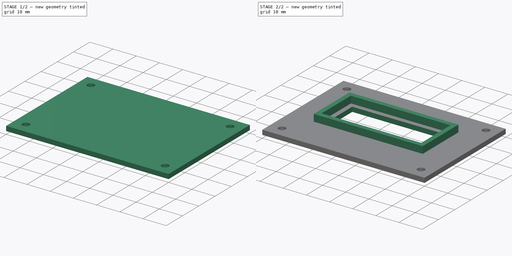
[diagram: build sequence overview — one tinted view per stage of 2, left to right]
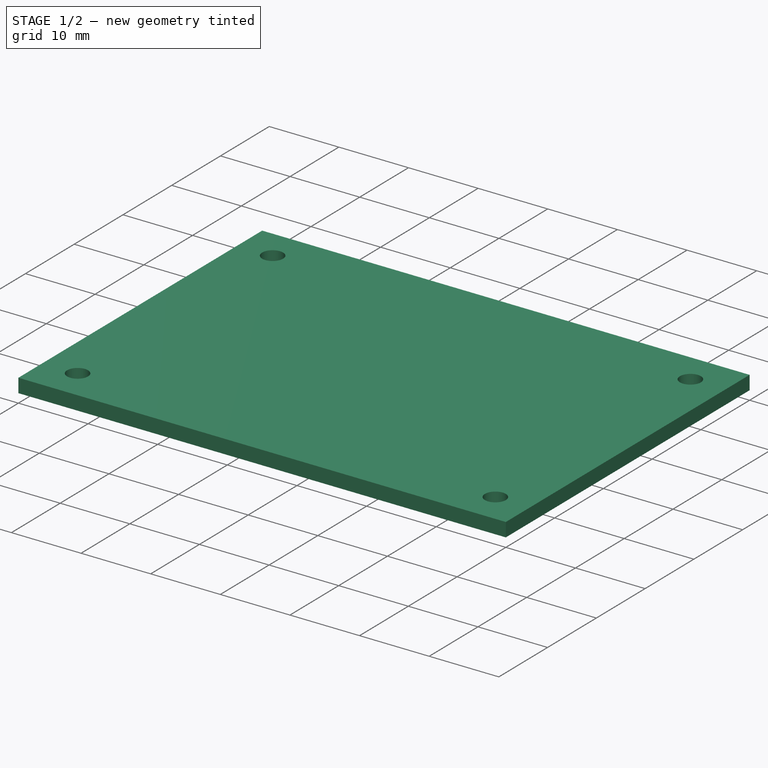
[diagram: stage 1 of 2 — iso view after this stage's code; geometry added in this stage tinted green]
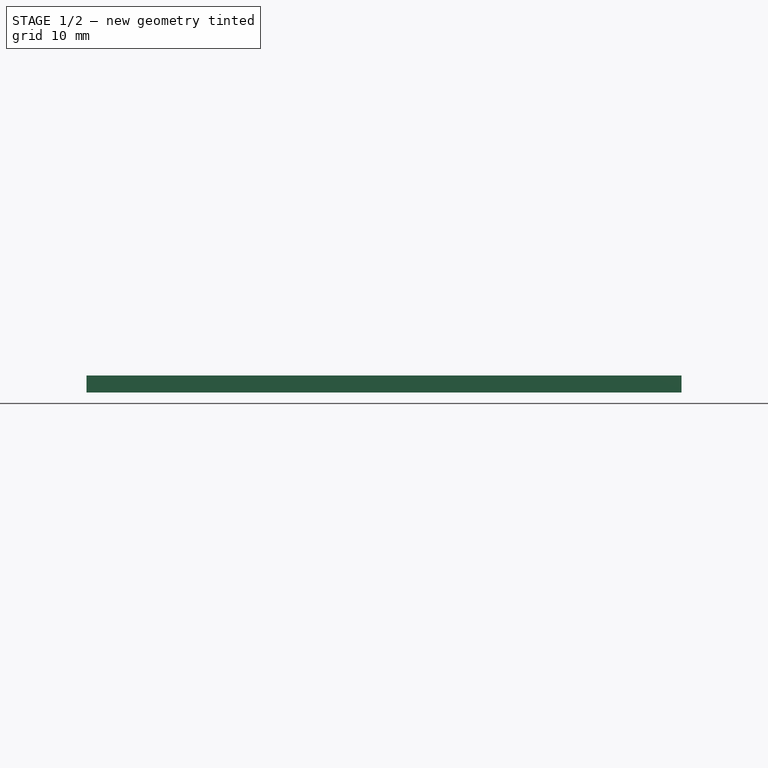
[diagram: stage 1 of 2 — front view after this stage's code; geometry added in this stage tinted green]
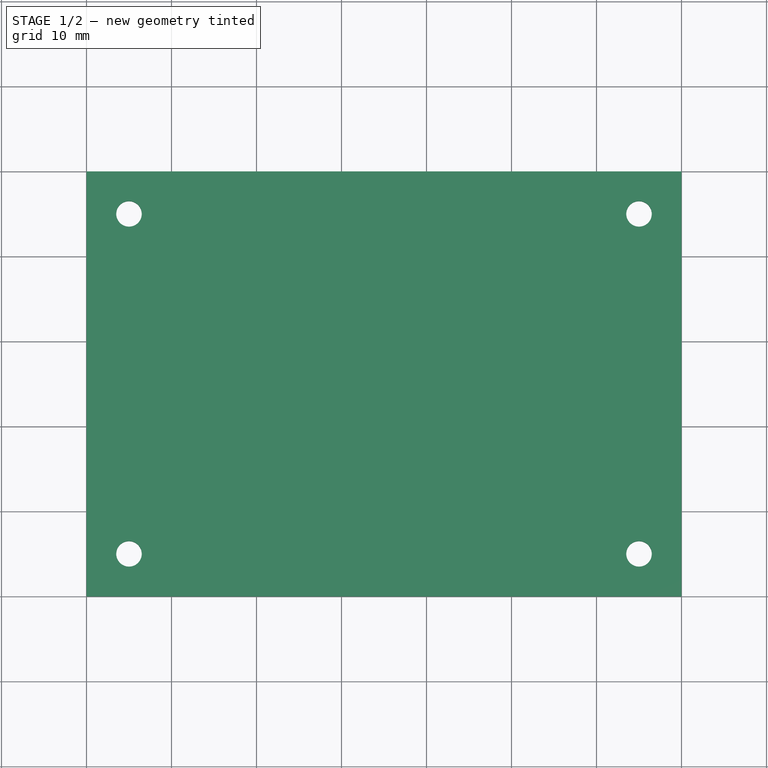
[diagram: stage 1 of 2 — top view after this stage's code; geometry added in this stage tinted green]
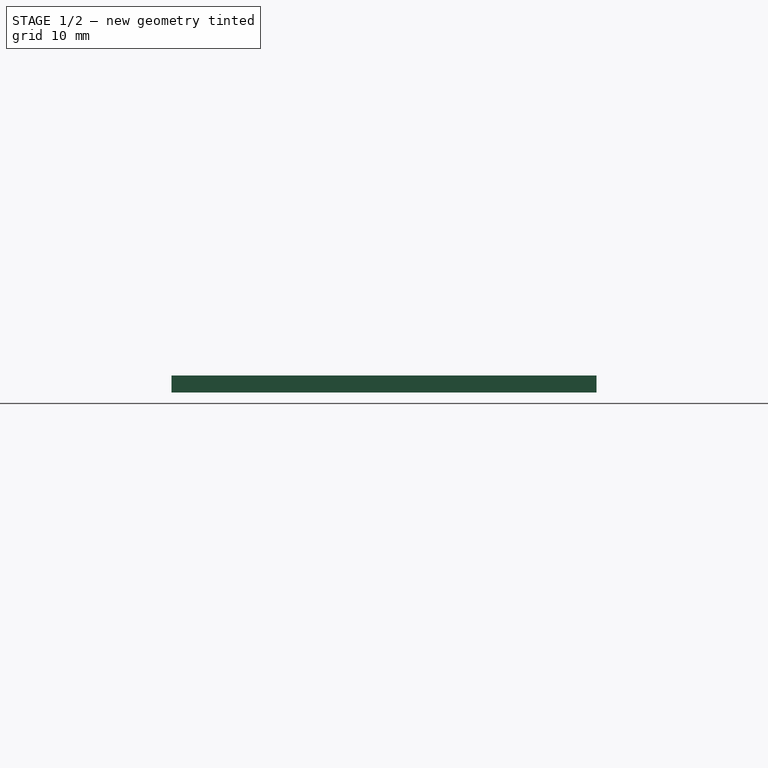
[diagram: stage 1 of 2 — right view after this stage's code; geometry added in this stage tinted green]
FCSTD DOCUMENT  (FreeCAD 0.16R6706 (Git))
Label: iROB-EA_ModuloPrincipal_Trasera
License: All rights reserved
LicenseURL: http://en.wikipedia.org/wiki/All_rights_reserved
objects: Sketcher::SketchObject×4, PartDesign::Pad×2, PartDesign::Pocket×2
note: 12 computed .brp shape members not serialized (recipe doc carries the construction recipe); baked Part::Feature solids carry a one-line shape summary decoded from their .brp

FEATURE [Sketcher::SketchObject] Sketch  label="Base"
  sketch-geometry (4):
    g0: LineSegment StartX=0 StartY=50 StartZ=0 EndX=70 EndY=50 EndZ=0
    g1: LineSegment StartX=70 StartY=50 StartZ=0 EndX=70 EndY=0 EndZ=0
    g2: LineSegment StartX=70 StartY=0 StartZ=0 EndX=0 EndY=0 EndZ=0
    g3: LineSegment StartX=0 StartY=0 StartZ=0 EndX=0 EndY=50 EndZ=0
  constraints (11):
    c: Coincident(g0,g1)
    c: Coincident(g1,g2)
    c: Coincident(g2,g3)
    c: Coincident(g3,g0)
    c: Horizontal(g0)
    c: Horizontal(g2)
    c: Vertical(g1)
    c: Vertical(g3)
    c: DistanceX(g0,g0) = 70
    c: DistanceY(g3,g3) = 50
    c: Coincident(g2,g-1)
FEATURE [PartDesign::Pad] Pad
  Length = 2
  Length2 = 100
  Sketch = -> Sketch
  Type = 0
FEATURE [Sketcher::SketchObject] Sketch001  label="Tornillos_Base"
  Placement = pos=(0,0,2) rot=(0,0,1;0rad)
  Support = -> Pad [Face6]
  sketch-geometry (4):
    g0: Circle CenterX=5 CenterY=45 CenterZ=0 NormalX=0 NormalY=0 NormalZ=1 Radius=1.5
    g1: Circle CenterX=65 CenterY=45 CenterZ=0 NormalX=0 NormalY=0 NormalZ=1 Radius=1.5
    g2: Circle CenterX=5 CenterY=5 CenterZ=0 NormalX=0 NormalY=0 NormalZ=1 Radius=1.5
    g3: Circle CenterX=65 CenterY=5 CenterZ=0 NormalX=0 NormalY=0 NormalZ=1 Radius=1.5
  constraints (12):
    c: Radius(g0) = 1.5
    c: Radius(g1) = 1.5
    c: DistanceY(g0,g1) = 0
    c: DistanceX(g0,g1) = 60
    c: Radius(g2) = 1.5
    c: Radius(g3) = 1.5
    c: DistanceY(g2,g3) = 0
    c: DistanceX(g3,g1) = 0
    c: DistanceX(g0,g2) = 0
    c: DistanceY(g2,g0) = 40
    c: DistanceX(g2,g-1) = -5
    c: DistanceY(g-1,g2) = 5
FEATURE [PartDesign::Pocket] Pocket
  Length = 2
  Sketch = -> Sketch001
  Type = 0
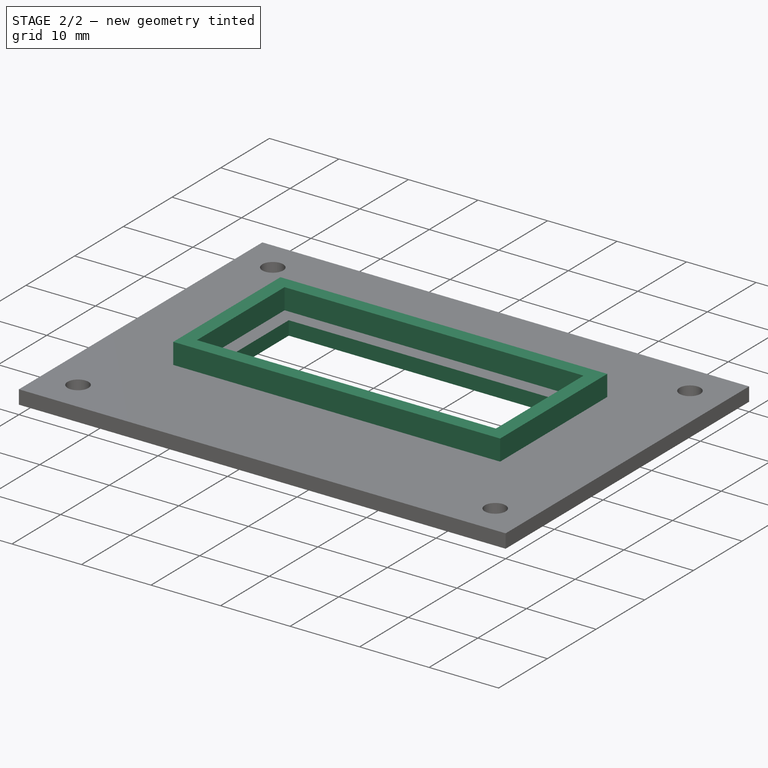
[diagram: stage 2 of 2 — iso view after this stage's code; geometry added in this stage tinted green]
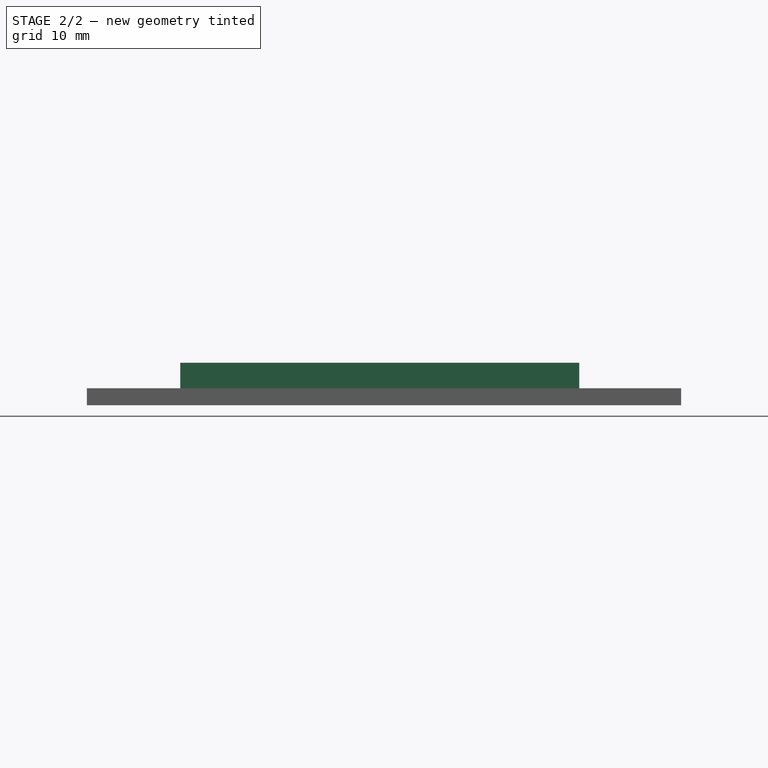
[diagram: stage 2 of 2 — front view after this stage's code; geometry added in this stage tinted green]
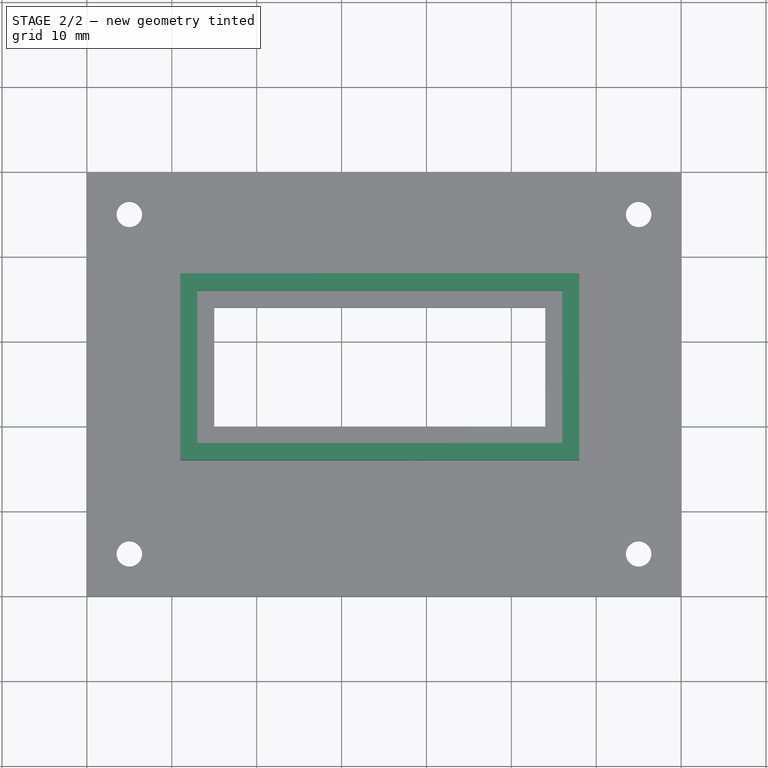
[diagram: stage 2 of 2 — top view after this stage's code; geometry added in this stage tinted green]
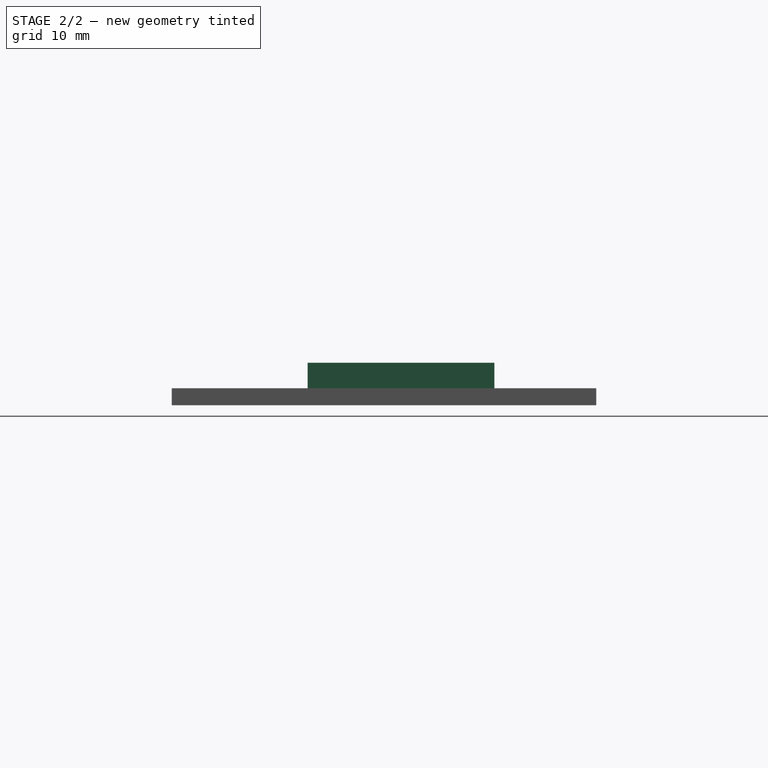
[diagram: stage 2 of 2 — right view after this stage's code; geometry added in this stage tinted green]
FEATURE [Sketcher::SketchObject] Sketch002  label="Ventana"
  Placement = pos=(0,0,2) rot=(0,0,1;0rad)
  Support = -> Pocket [Face5]
  sketch-geometry (4):
    g0: LineSegment StartX=15 StartY=34 StartZ=0 EndX=54 EndY=34 EndZ=0
    g1: LineSegment StartX=54 StartY=34 StartZ=0 EndX=54 EndY=20 EndZ=0
    g2: LineSegment StartX=54 StartY=20 StartZ=0 EndX=15 EndY=20 EndZ=0
    g3: LineSegment StartX=15 StartY=20 StartZ=0 EndX=15 EndY=34 EndZ=0
  constraints (12):
    c: Coincident(g0,g1)
    c: Coincident(g1,g2)
    c: Coincident(g2,g3)
    c: Coincident(g3,g0)
    c: Horizontal(g0)
    c: Horizontal(g2)
    c: Vertical(g1)
    c: Vertical(g3)
    c: DistanceY(g1,g1) = 14
    c: DistanceX(g0,g0) = 39
    c: DistanceX(g2,g-1) = -15
    c: DistanceY(g-1,g2) = 20
FEATURE [PartDesign::Pocket] Pocket001
  Length = 2
  Sketch = -> Sketch002
  Type = 0
FEATURE [Sketcher::SketchObject] Sketch003  label="Ventana_Marco"
  Placement = pos=(0,0,2) rot=(0,0,1;0rad)
  Support = -> Pocket001 [Face5]
  sketch-geometry (8):
    g0: LineSegment StartX=13 StartY=36 StartZ=0 EndX=56 EndY=36 EndZ=0
    g1: LineSegment StartX=56 StartY=36 StartZ=0 EndX=56 EndY=18 EndZ=0
    g2: LineSegment StartX=56 StartY=18 StartZ=0 EndX=13 EndY=18 EndZ=0
    g3: LineSegment StartX=13 StartY=18 StartZ=0 EndX=13 EndY=36 EndZ=0
    g4: LineSegment StartX=11 StartY=38 StartZ=0 EndX=58 EndY=38 EndZ=0
    g5: LineSegment StartX=58 StartY=38 StartZ=0 EndX=58 EndY=16 EndZ=0
    g6: LineSegment StartX=58 StartY=16 StartZ=0 EndX=11 EndY=16 EndZ=0
    g7: LineSegment StartX=11 StartY=16 StartZ=0 EndX=11 EndY=38 EndZ=0
  constraints (24):
    c: Coincident(g0,g1)
    c: Coincident(g1,g2)
    c: Coincident(g2,g3)
    c: Coincident(g3,g0)
    c: Horizontal(g0)
    c: Horizontal(g2)
    c: Vertical(g1)
    c: Vertical(g3)
    c: DistanceY(g1,g1) = 18
    c: DistanceX(g0,g0) = 43
    c: Coincident(g4,g5)
    c: Coincident(g5,g6)
    c: Coincident(g6,g7)
    c: Coincident(g7,g4)
    c: Horizontal(g4)
    c: Horizontal(g6)
    c: Vertical(g5)
    c: Vertical(g7)
    c: DistanceY(g5,g5) = 22
    c: DistanceX(g4,g4) = 47
    c: DistanceX(g6,g2) = 2
    c: DistanceY(g6,g2) = 2
    c: DistanceY(g-1,g6) = 16
    c: DistanceX(g6,g-1) = -11
FEATURE [PartDesign::Pad] Pad001
  Length = 3
  Length2 = 100
  Sketch = -> Sketch003
  Type = 0
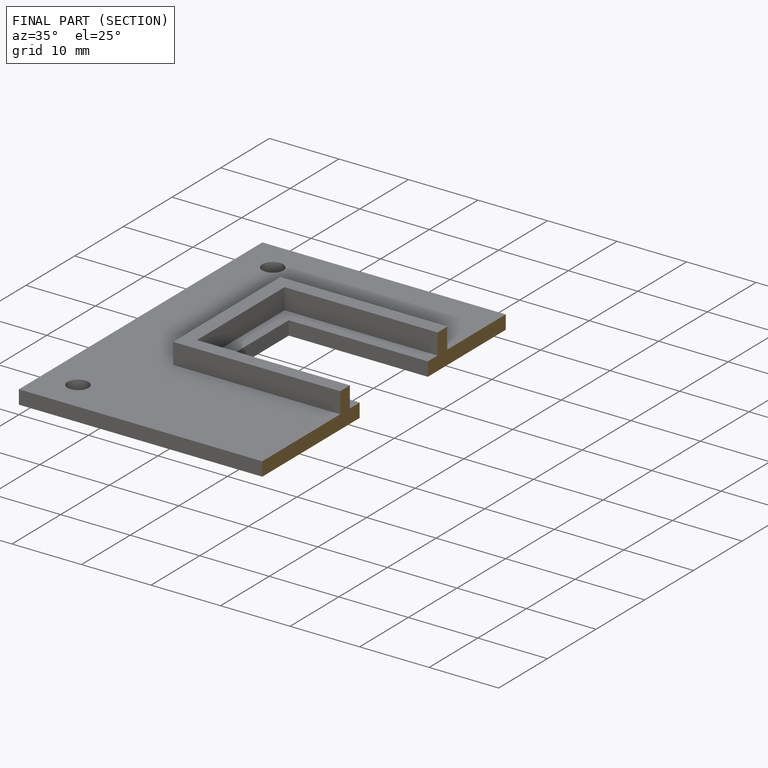
[diagram: finished part — half-section view (interior)]
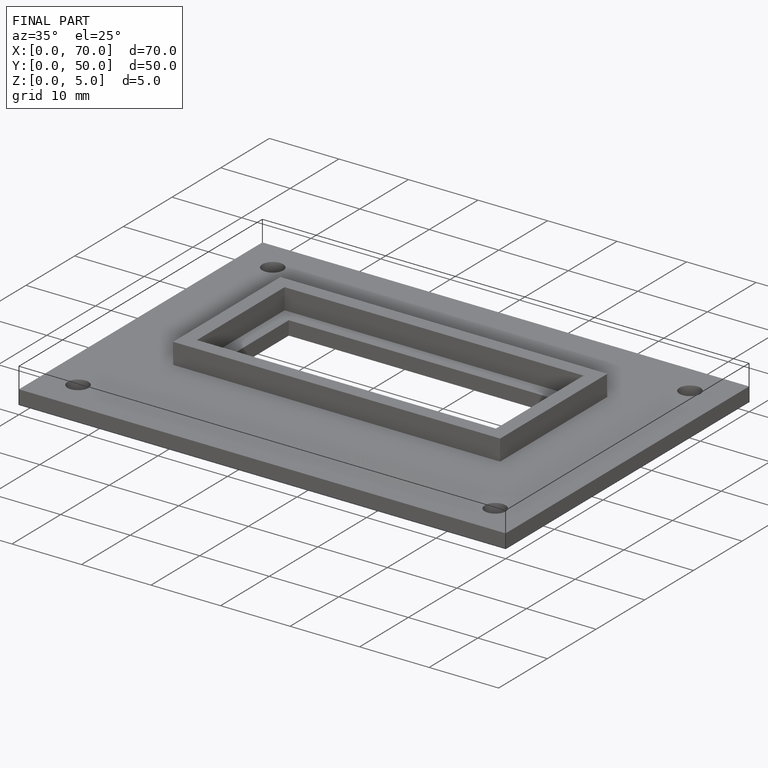
[diagram: finished part — iso view with bounding-box wireframe]
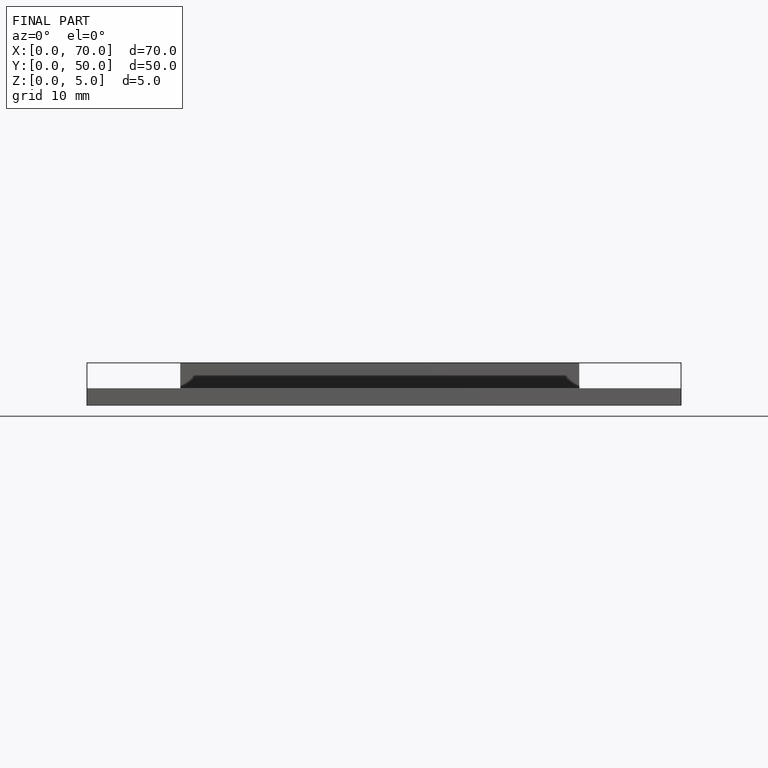
[diagram: finished part — front view with bounding-box wireframe]
